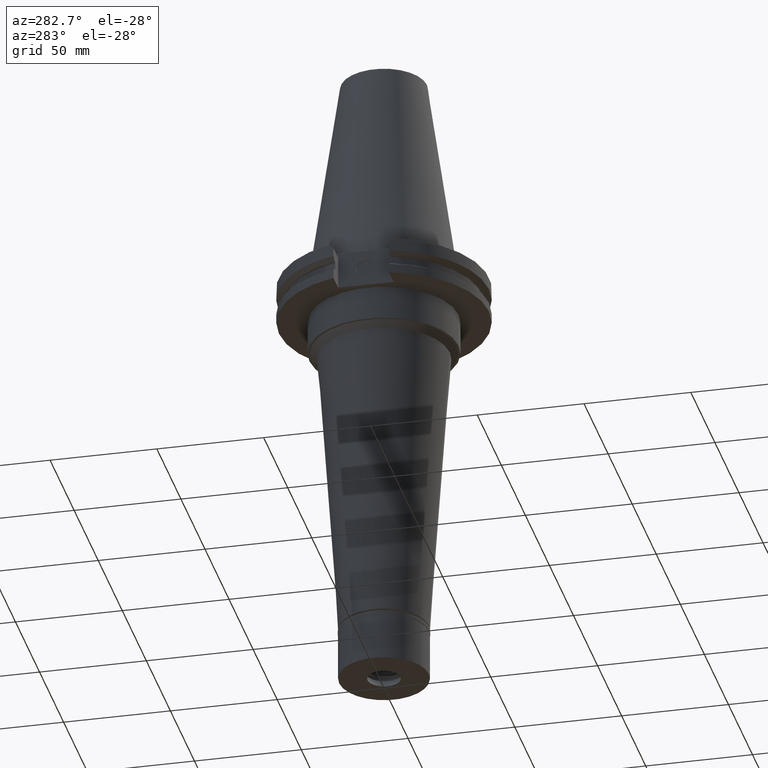
[diagram: clean part render]
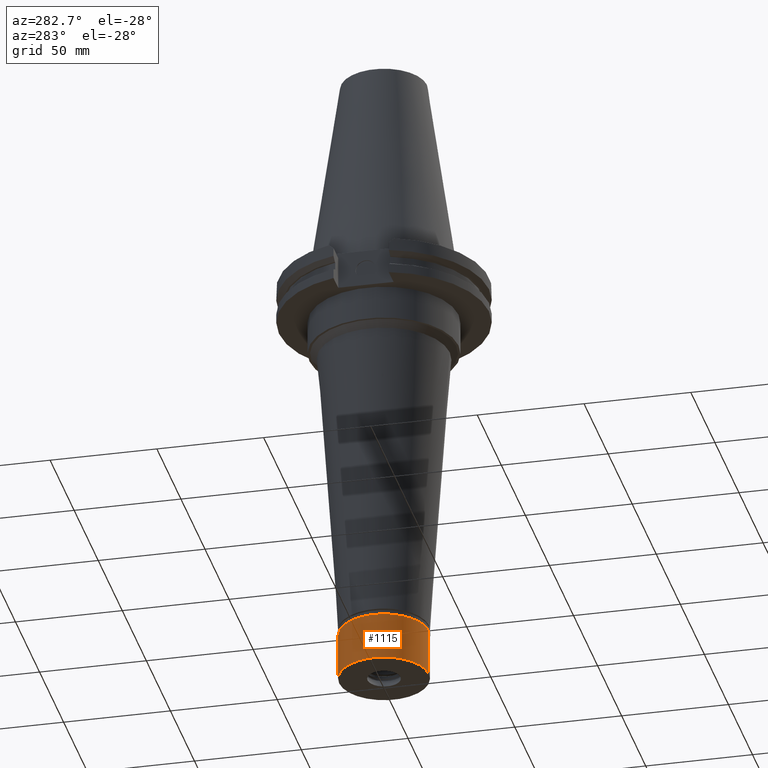
[diagram: same view with one face highlighted and labeled with its STEP entity id]
A machine part, auxiliary view. The second image highlights one B-rep face of the part: STEP entity #1115.
In plain terms, the highlighted cylindrical surface (partial cylindrical patch) has radius 21 mm, axis along (0, 0, -1).
Its self-contained STEP definition (entity closure, byte-faithful):
#30 = ORIENTED_EDGE ( 'NONE', *, *, #862, .T. ) ;
#43 = CARTESIAN_POINT ( 'NONE',  ( 0.0000000000000000000, 0.0000000000000000000, -24.29999999999999716 ) ) ;
#114 = FACE_OUTER_BOUND ( 'NONE', #2761, .T. ) ;
#190 = VERTEX_POINT ( 'NONE', #1991 ) ;
#408 = CARTESIAN_POINT ( 'NONE',  ( 0.0000000000000000000, -21.00000000000000000, -2.000000000000000000 ) ) ;
#412 = AXIS2_PLACEMENT_3D ( 'NONE', #43, #1593, #1082 ) ;
#420 = EDGE_CURVE ( 'NONE', #1251, #2308, #954, .T. ) ;
#493 = VERTEX_POINT ( 'NONE', #408 ) ;
#527 = VECTOR ( 'NONE', #2532, 1000.000000000000000 ) ;
#612 = EDGE_CURVE ( 'NONE', #493, #2308, #1077, .T. ) ;
#804 = DIRECTION ( 'NONE',  ( 0.0000000000000000000, 0.0000000000000000000, -1.000000000000000000 ) ) ;
#862 = EDGE_CURVE ( 'NONE', #493, #190, #2243, .T. ) ;
#954 = CIRCLE ( 'NONE', #412, 21.00000000000000000 ) ;
#959 = DIRECTION ( 'NONE',  ( 0.0000000000000000000, -1.000000000000000000, 0.0000000000000000000 ) ) ;
#1077 = LINE ( 'NONE', #1490, #527 ) ;
#1082 = DIRECTION ( 'NONE',  ( 0.0000000000000000000, 1.000000000000000000, 0.0000000000000000000 ) ) ;
#1115 = ADVANCED_FACE ( 'NONE', ( #114 ), #1151, .T. ) ;
#1151 = CYLINDRICAL_SURFACE ( 'NONE', #3234, 21.00000000000000000 ) ;
#1183 = CARTESIAN_POINT ( 'NONE',  ( 0.0000000000000000000, 21.00000000000000000, -24.29999999999999716 ) ) ;
#1223 = AXIS2_PLACEMENT_3D ( 'NONE', #1978, #2231, #959 ) ;
#1251 = VERTEX_POINT ( 'NONE', #1183 ) ;
#1371 = ORIENTED_EDGE ( 'NONE', *, *, #420, .T. ) ;
#1490 = CARTESIAN_POINT ( 'NONE',  ( 0.0000000000000000000, -21.00000000000000000, -2.000000000000000000 ) ) ;
#1540 = LINE ( 'NONE', #3103, #1665 ) ;
#1593 = DIRECTION ( 'NONE',  ( 0.0000000000000000000, 0.0000000000000000000, 1.000000000000000000 ) ) ;
#1665 = VECTOR ( 'NONE', #804, 1000.000000000000000 ) ;
#1673 = DIRECTION ( 'NONE',  ( 0.0000000000000000000, 0.0000000000000000000, -1.000000000000000000 ) ) ;
#1777 = ORIENTED_EDGE ( 'NONE', *, *, #612, .F. ) ;
#1822 = EDGE_CURVE ( 'NONE', #190, #1251, #1540, .T. ) ;
#1978 = CARTESIAN_POINT ( 'NONE',  ( 0.0000000000000000000, 0.0000000000000000000, -2.000000000000000000 ) ) ;
#1991 = CARTESIAN_POINT ( 'NONE',  ( 0.0000000000000000000, 21.00000000000000000, -2.000000000000000000 ) ) ;
#2108 = DIRECTION ( 'NONE',  ( 0.0000000000000000000, -1.000000000000000000, 0.0000000000000000000 ) ) ;
#2231 = DIRECTION ( 'NONE',  ( 0.0000000000000000000, 0.0000000000000000000, -1.000000000000000000 ) ) ;
#2243 = CIRCLE ( 'NONE', #1223, 21.00000000000000000 ) ;
#2308 = VERTEX_POINT ( 'NONE', #2964 ) ;
#2532 = DIRECTION ( 'NONE',  ( 0.0000000000000000000, 0.0000000000000000000, -1.000000000000000000 ) ) ;
#2761 = EDGE_LOOP ( 'NONE', ( #1371, #1777, #30, #3190 ) ) ;
#2964 = CARTESIAN_POINT ( 'NONE',  ( 0.0000000000000000000, -21.00000000000000000, -24.29999999999999716 ) ) ;
#2975 = CARTESIAN_POINT ( 'NONE',  ( 0.0000000000000000000, 0.0000000000000000000, 0.0000000000000000000 ) ) ;
#3103 = CARTESIAN_POINT ( 'NONE',  ( 0.0000000000000000000, 21.00000000000000000, -2.000000000000000000 ) ) ;
#3190 = ORIENTED_EDGE ( 'NONE', *, *, #1822, .T. ) ;
#3234 = AXIS2_PLACEMENT_3D ( 'NONE', #2975, #1673, #2108 ) ;